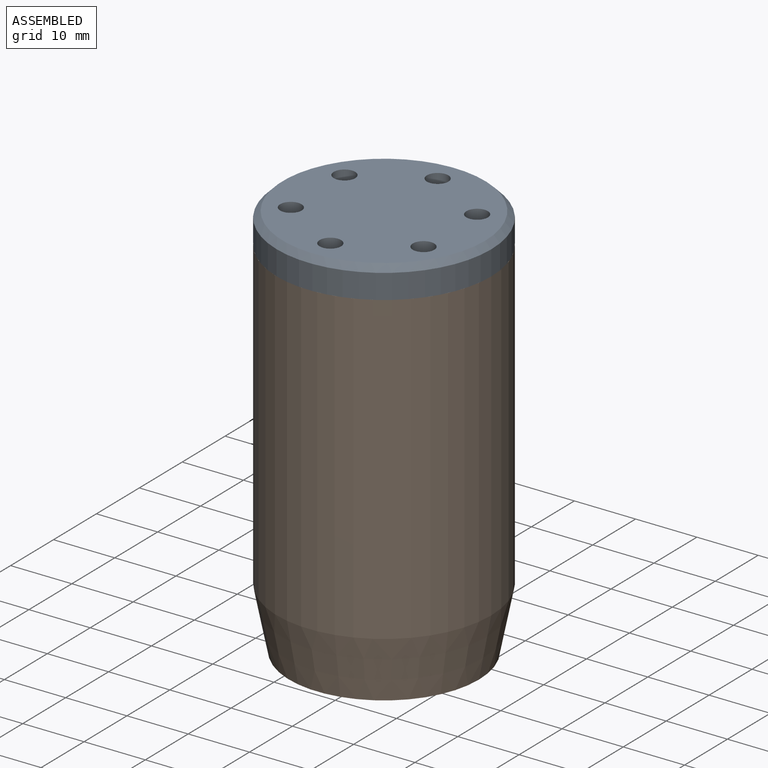
[diagram: assembled view]
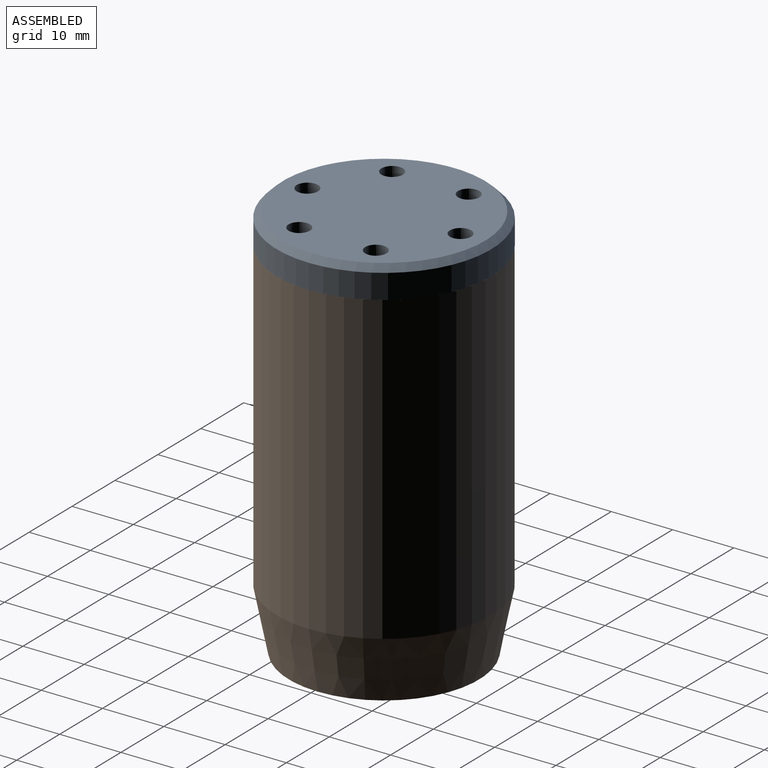
[diagram: assembled view, second angle]
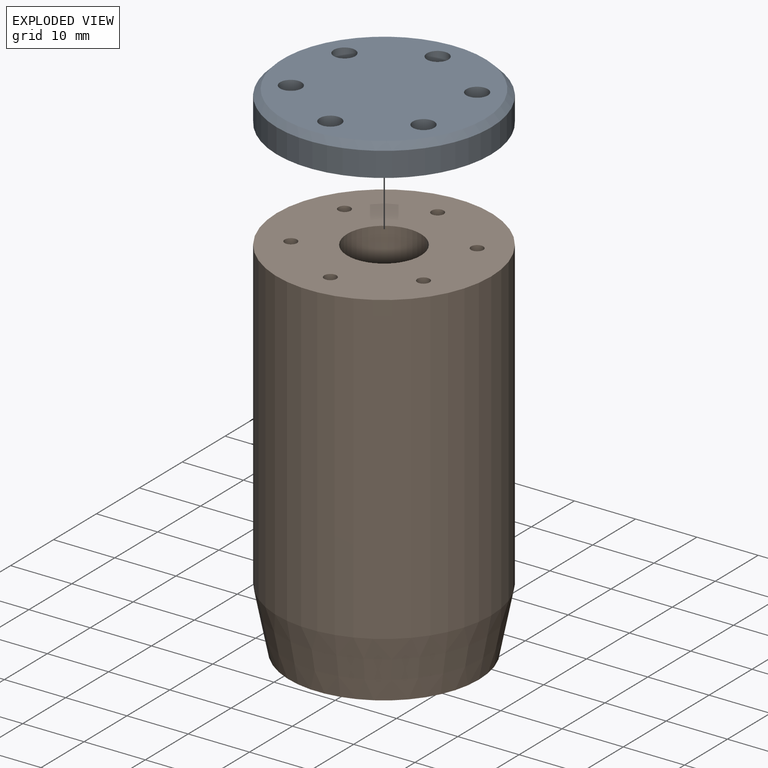
[diagram: exploded view]
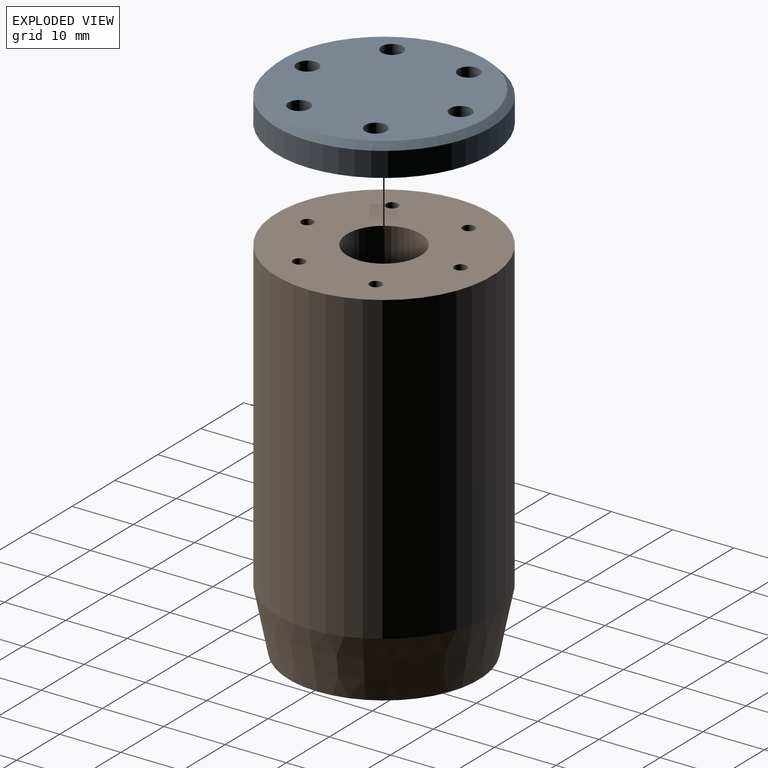
[diagram: exploded view, second angle]
ASSEMBLY  parts=2 mates=2
PART A: 22 faces, bbox 35x35x5 mm
  f0: cylinder r=17.5mm len=35mm, axis (0,0,-1), area 439.8mm2, adj f2,f3
  f1: plane 33x33mm, normal (0,0,1), area 797.6mm2, adj f3,f4,f6,f8,f10,f12,f14
  f2: plane 35x35mm, normal (0,0,-1), area 941.3mm2, adj f0,f16,f17,f18,f19,f20,f21
  f3: cone r=16.5mm half-angle=45deg, axis (0,0,-1), area 151.1mm2, adj f0,f1
  f4: cylinder r=1.75mm len=3.5mm, axis (0,0,1), area 33mm2, adj f1,f5
  f5: plane 3.5x3.5mm, normal (0,0,1), area 6.2mm2, adj f4,f20
  f6: cylinder r=1.75mm len=3.5mm, axis (0,0,1), area 33mm2, adj f1,f7
  f7: plane 3.5x3.5mm, normal (0,0,1), area 6.2mm2, adj f6,f21
  f8: cylinder r=1.75mm len=3.5mm, axis (0,0,1), area 33mm2, adj f1,f9
  f9: plane 3.5x3.5mm, normal (0,0,1), area 6.2mm2, adj f8,f16
  f10: cylinder r=1.75mm len=3.5mm, axis (0,0,1), area 33mm2, adj f1,f11
  f11: plane 3.5x3.5mm, normal (0,0,1), area 6.2mm2, adj f10,f17
  f12: cylinder r=1.75mm len=3.5mm, axis (0,0,1), area 33mm2, adj f1,f13
  f13: plane 3.5x3.5mm, normal (0,0,1), area 6.2mm2, adj f12,f18
  f14: cylinder r=1.75mm len=3.5mm, axis (0,0,1), area 33mm2, adj f1,f15
  f15: plane 3.5x3.5mm, normal (0,0,1), area 6.2mm2, adj f14,f19
  f16: cylinder r=1.05mm len=2.1mm, axis (0,0,1), area 13.2mm2, adj f2,f9
  f17: cylinder r=1.05mm len=2.1mm, axis (0,0,1), area 13.2mm2, adj f2,f11
  f18: cylinder r=1.05mm len=2.1mm, axis (0,0,1), area 13.2mm2, adj f2,f13
  f19: cylinder r=1.05mm len=2.1mm, axis (0,0,1), area 13.2mm2, adj f2,f15
  f20: cylinder r=1.05mm len=2.1mm, axis (0,0,1), area 13.2mm2, adj f2,f5
  f21: cylinder r=1.05mm len=2.1mm, axis (0,0,1), area 13.2mm2, adj f2,f7
PART B: 21 faces, bbox 35x35x60 mm
  f0: cylinder r=2.75mm len=5.5mm, axis (0,0,-1), area 86.4mm2, adj f6,f19
  f1: plane 31x31mm, normal (0,0,-1), area 139mm2, adj f4,f5
  f2: plane 35x35mm, normal (0,0,1), area 830.2mm2, adj f3,f7,f9,f11,f13,f15,f17,f20
  f3: cylinder r=17.5mm len=50mm, axis (0,0,-1), area 5497.8mm2, adj f2,f4
  f4: cone r=17.5mm half-angle=11.3deg, axis (0,0,1), area 1057.3mm2, adj f1,f3
  f5: cylinder r=14mm len=30mm, axis (0,0,-1), area 2638.9mm2, adj f1,f6
  f6: plane 28x28mm, normal (0,0,-1), area 592mm2, adj f0,f5
  f7: cylinder r=1mm len=6mm, axis (0,0,1), area 37.7mm2, adj f2,f8
  f8: plane 2x2mm, normal (0,0,1), area 3.1mm2, adj f7
  f9: cylinder r=1mm len=6mm, axis (0,0,1), area 37.7mm2, adj f2,f10
  f10: plane 2x2mm, normal (0,0,1), area 3.1mm2, adj f9
  f11: cylinder r=1mm len=6mm, axis (0,0,1), area 37.7mm2, adj f2,f12
  f12: plane 2x2mm, normal (0,0,1), area 3.1mm2, adj f11
  f13: cylinder r=1mm len=6mm, axis (0,0,1), area 37.7mm2, adj f2,f14
  f14: plane 2x2mm, normal (0,0,1), area 3.1mm2, adj f13
  f15: cylinder r=1mm len=6mm, axis (0,0,1), area 37.7mm2, adj f2,f16
  f16: plane 2x2mm, normal (0,0,1), area 3.1mm2, adj f15
  f17: cylinder r=1mm len=6mm, axis (0,0,1), area 37.7mm2, adj f2,f18
  f18: plane 2x2mm, normal (0,0,1), area 3.1mm2, adj f17
  f19: plane 12x12mm, normal (0,0,1), area 89.3mm2, adj f0,f20
  f20: cylinder r=6mm len=25mm, axis (0,0,1), area 942.5mm2, adj f2,f19
PLACE A t=(43.02,27.05,15.93)mm
PLACE B t=(43.02,27.05,-44.07)mm
MATE planar B.f15 <-> A.f4  axis (0,0,1) through (32.2,33.3,15.93)mm
MATE cylindrical B.f17 <-> A.f6  axis (0,0,1) through (43.02,39.55,15.93)mm
